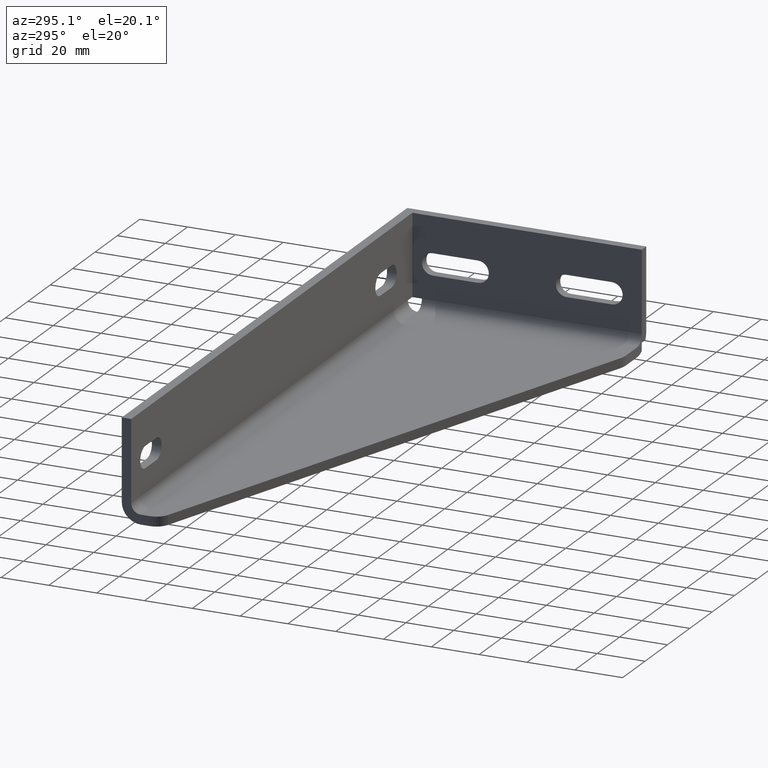
[diagram: clean part render]
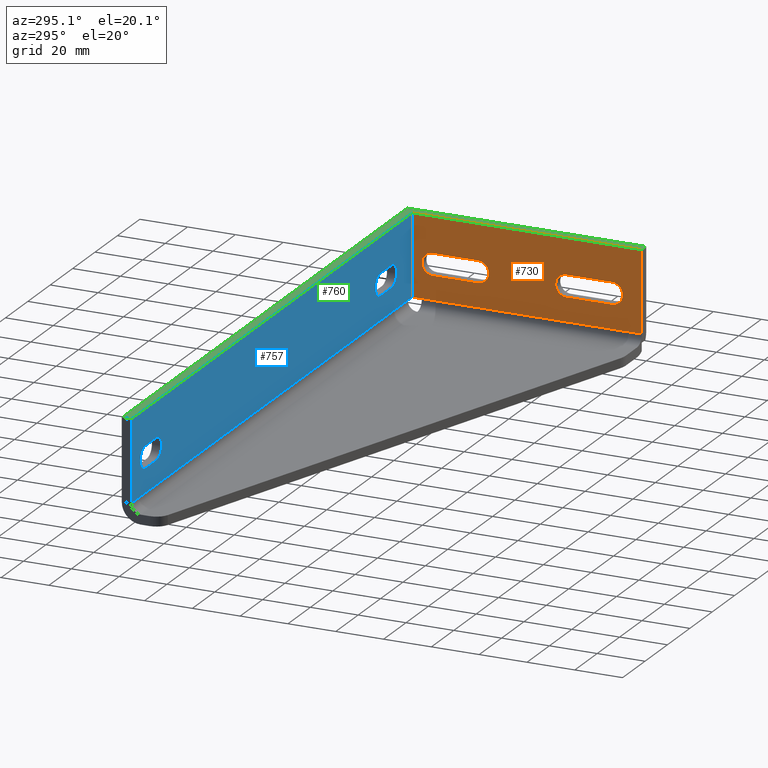
[diagram: same view with three faces highlighted in distinct colors, each labeled with its STEP entity id]
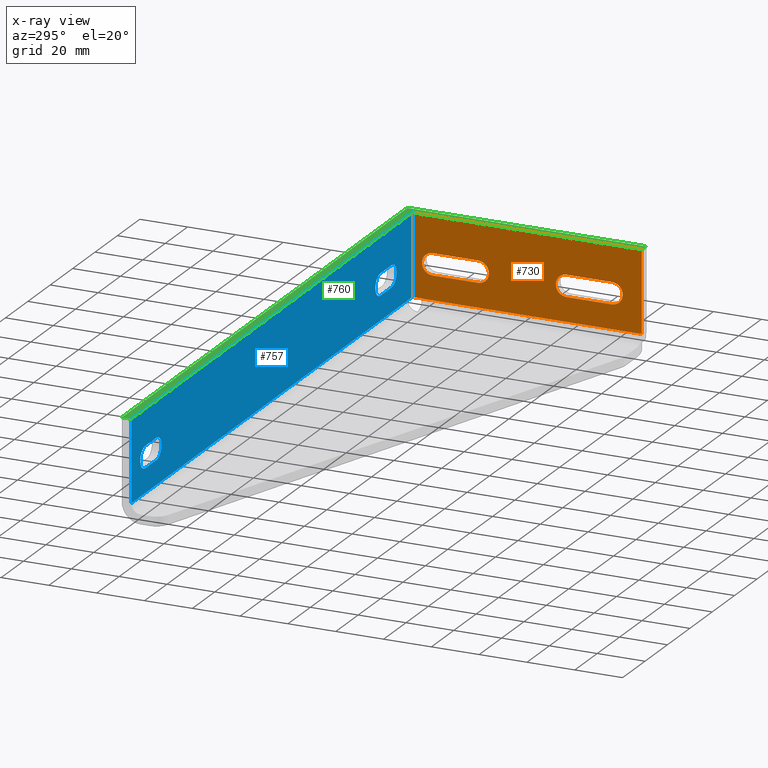
[diagram: x-ray of the same camera — body ghosted, the three highlighted faces saturated]
A machine part, auxiliary view with three faces highlighted in distinct colors.
The next image is the same camera in x-ray (body ghosted, the three faces saturated) — at least one of them is partly hidden behind the body in this view.
Their STEP definitions:

[orange] entity #730 — the highlighted planar face has unit normal (-1, 0, -0).
#16=FACE_BOUND('',#117,.T.);
#17=FACE_BOUND('',#118,.T.);
#25=CIRCLE('',#773,4.5);
#26=CIRCLE('',#775,4.5);
#28=CIRCLE('',#778,4.5);
#29=CIRCLE('',#779,4.5);
#75=FACE_OUTER_BOUND('',#116,.T.);
#116=EDGE_LOOP('',(#508,#509,#510,#511,#512));
#117=EDGE_LOOP('',(#513,#514,#515,#516));
#118=EDGE_LOOP('',(#517,#518,#519,#520));
#161=LINE('',#1066,#237);
#165=LINE('',#1075,#241);
#169=LINE('',#1084,#245);
#173=LINE('',#1093,#249);
#175=LINE('',#1104,#251);
#176=LINE('',#1106,#252);
#177=LINE('',#1108,#253);
#178=LINE('',#1110,#254);
#179=LINE('',#1111,#255);
#237=VECTOR('',#844,19.);
#241=VECTOR('',#850,19.);
#245=VECTOR('',#856,19.);
#249=VECTOR('',#862,19.);
#251=VECTOR('',#878,96.);
#252=VECTOR('',#879,34.);
#253=VECTOR('',#880,4.);
#254=VECTOR('',#881,92.);
#255=VECTOR('',#882,33.9999999999999);
#313=VERTEX_POINT('',#1063);
#314=VERTEX_POINT('',#1065);
#317=VERTEX_POINT('',#1072);
#318=VERTEX_POINT('',#1074);
#321=VERTEX_POINT('',#1081);
#322=VERTEX_POINT('',#1083);
#325=VERTEX_POINT('',#1090);
#326=VERTEX_POINT('',#1092);
#327=VERTEX_POINT('',#1102);
#328=VERTEX_POINT('',#1103);
#329=VERTEX_POINT('',#1105);
#330=VERTEX_POINT('',#1107);
#331=VERTEX_POINT('',#1109);
#379=EDGE_CURVE('',#314,#313,#161,.T.);
#383=EDGE_CURVE('',#318,#317,#165,.T.);
#387=EDGE_CURVE('',#322,#321,#169,.T.);
#391=EDGE_CURVE('',#326,#325,#173,.T.);
#394=EDGE_CURVE('',#317,#314,#25,.T.);
#395=EDGE_CURVE('',#321,#326,#26,.T.);
#397=EDGE_CURVE('',#327,#328,#175,.T.);
#398=EDGE_CURVE('',#329,#327,#176,.T.);
#399=EDGE_CURVE('',#329,#330,#177,.T.);
#400=EDGE_CURVE('',#330,#331,#178,.T.);
#401=EDGE_CURVE('',#328,#331,#179,.T.);
#402=EDGE_CURVE('',#313,#318,#28,.T.);
#403=EDGE_CURVE('',#325,#322,#29,.T.);
#508=ORIENTED_EDGE('',*,*,#397,.F.);
#509=ORIENTED_EDGE('',*,*,#398,.F.);
#510=ORIENTED_EDGE('',*,*,#399,.T.);
#511=ORIENTED_EDGE('',*,*,#400,.T.);
#512=ORIENTED_EDGE('',*,*,#401,.F.);
#513=ORIENTED_EDGE('',*,*,#394,.T.);
#514=ORIENTED_EDGE('',*,*,#379,.T.);
#515=ORIENTED_EDGE('',*,*,#402,.T.);
#516=ORIENTED_EDGE('',*,*,#383,.T.);
#517=ORIENTED_EDGE('',*,*,#391,.T.);
#518=ORIENTED_EDGE('',*,*,#403,.T.);
#519=ORIENTED_EDGE('',*,*,#387,.T.);
#520=ORIENTED_EDGE('',*,*,#395,.T.);
#702=PLANE('',#777);
#730=ADVANCED_FACE('',(#75,#16,#17),#702,.T.);
#773=AXIS2_PLACEMENT_3D('',#1097,#868,#869);
#775=AXIS2_PLACEMENT_3D('',#1099,#872,#873);
#777=AXIS2_PLACEMENT_3D('',#1101,#876,#877);
#778=AXIS2_PLACEMENT_3D('',#1112,#883,#884);
#779=AXIS2_PLACEMENT_3D('',#1113,#885,#886);
#844=DIRECTION('',(-1.70076183204162E-15,-1.,-7.72329060608804E-16));
#850=DIRECTION('',(1.70076183204162E-15,1.,7.72329060608804E-16));
#856=DIRECTION('',(-1.70076183204162E-15,-1.,-7.72329060608804E-16));
#862=DIRECTION('',(1.70076183204162E-15,1.,7.72329060608804E-16));
#868=DIRECTION('center_axis',(1.,-1.70076183204162E-15,1.5993479553445E-15));
#869=DIRECTION('ref_axis',(-1.5993479553445E-15,-7.72329060608801E-16,1.));
#872=DIRECTION('center_axis',(1.,-1.70076183204162E-15,1.5993479553445E-15));
#873=DIRECTION('ref_axis',(-1.5993479553445E-15,-7.72329060608801E-16,1.));
#876=DIRECTION('center_axis',(-1.,1.70076183204162E-15,-1.5993479553445E-15));
#877=DIRECTION('ref_axis',(-1.77635683940025E-15,0.,1.));
#878=DIRECTION('',(0.,-1.,-8.03222223033156E-16));
#879=DIRECTION('',(-2.089831575765E-15,-1.09209284292716E-16,1.));
#880=DIRECTION('',(-1.49554588919309E-59,-1.,-8.03222223033156E-16));
#881=DIRECTION('',(-1.70076183204162E-15,-1.,-2.30768365885029E-30));
#882=DIRECTION('',(7.94426253176225E-15,-3.88217367459135E-30,-1.));
#883=DIRECTION('center_axis',(1.,-1.70076183204162E-15,1.5993479553445E-15));
#884=DIRECTION('ref_axis',(-1.5993479553445E-15,-7.72329060608801E-16,1.));
#885=DIRECTION('center_axis',(1.,-1.70076183204162E-15,1.5993479553445E-15));
#886=DIRECTION('ref_axis',(-1.5993479553445E-15,-7.72329060608801E-16,1.));
#1063=CARTESIAN_POINT('',(-3.99999999999999,-31.5,4.5000000000005));
#1065=CARTESIAN_POINT('',(-3.99999999999999,-12.5,4.5000000000005));
#1066=CARTESIAN_POINT('',(-3.99999999999999,-42.75,4.5000000000004));
#1072=CARTESIAN_POINT('',(-3.99999999999999,-12.5,-4.4999999999995));
#1074=CARTESIAN_POINT('',(-3.99999999999999,-31.5,-4.4999999999996));
#1075=CARTESIAN_POINT('',(-3.99999999999999,-33.25,-4.4999999999996));
#1081=CARTESIAN_POINT('',(-3.99999999999999,-87.5,4.5000000000004));
#1083=CARTESIAN_POINT('',(-3.99999999999999,-68.5,4.5000000000004));
#1084=CARTESIAN_POINT('',(-3.99999999999999,-70.75,4.5000000000004));
#1090=CARTESIAN_POINT('',(-3.99999999999999,-68.5,-4.4999999999996));
#1092=CARTESIAN_POINT('',(-3.99999999999999,-87.5,-4.4999999999996));
#1093=CARTESIAN_POINT('',(-3.99999999999999,-61.25,-4.4999999999996));
#1097=CARTESIAN_POINT('Origin',(-3.99999999999999,-12.5,5.01820807130571E-13));
#1099=CARTESIAN_POINT('Origin',(-3.99999999999999,-87.5,4.04121180963557E-13));
#1101=CARTESIAN_POINT('Origin',(-3.99999999999999,-54.,-2.0238934211693));
#1102=CARTESIAN_POINT('',(-3.99999999999999,-3.99999999999999,19.5));
#1103=CARTESIAN_POINT('',(-3.99999999999999,-100.,19.4999999999999));
#1104=CARTESIAN_POINT('',(-3.99999999999999,-3.99999999999999,19.5));
#1105=CARTESIAN_POINT('',(-3.99999999999999,-3.99999999999999,-14.5));
#1106=CARTESIAN_POINT('',(-3.99999999999999,-3.99999999999999,8.7380532894155));
#1107=CARTESIAN_POINT('',(-3.99999999999999,-7.99999999999999,-14.5000000000001));
#1108=CARTESIAN_POINT('',(-3.99999999999999,-3.99999999999999,-14.5));
#1109=CARTESIAN_POINT('',(-3.99999999999999,-100.,-14.5));
#1110=CARTESIAN_POINT('',(-3.99999999999999,-54.,-14.5000000000001));
#1111=CARTESIAN_POINT('',(-3.99999999999999,-100.,-32.5955736846773));
#1112=CARTESIAN_POINT('Origin',(-3.99999999999999,-31.5,5.01820807130571E-13));
#1113=CARTESIAN_POINT('Origin',(-3.99999999999999,-68.5,4.04121180963557E-13));

[blue] entity #757 — the highlighted planar face has unit normal (0, -1, -0).
#18=FACE_BOUND('',#146,.T.);
#19=FACE_BOUND('',#147,.T.);
#41=CIRCLE('',#802,4.5);
#43=CIRCLE('',#806,4.5);
#45=CIRCLE('',#810,4.5);
#47=CIRCLE('',#814,4.5);
#102=FACE_OUTER_BOUND('',#145,.T.);
#145=EDGE_LOOP('',(#634,#635,#636,#637,#638));
#146=EDGE_LOOP('',(#639,#640,#641,#642));
#147=EDGE_LOOP('',(#643,#644,#645,#646));
#176=LINE('',#1106,#252);
#200=LINE('',#1194,#276);
#204=LINE('',#1204,#280);
#208=LINE('',#1218,#284);
#212=LINE('',#1228,#288);
#220=LINE('',#1248,#296);
#225=LINE('',#1263,#301);
#228=LINE('',#1268,#304);
#229=LINE('',#1269,#305);
#252=VECTOR('',#879,34.);
#276=VECTOR('',#955,10.);
#280=VECTOR('',#967,10.);
#284=VECTOR('',#979,10.);
#288=VECTOR('',#991,10.);
#296=VECTOR('',#1013,3.99999999999998);
#301=VECTOR('',#1030,34.);
#304=VECTOR('',#1035,251.);
#305=VECTOR('',#1036,247.);
#327=VERTEX_POINT('',#1102);
#329=VERTEX_POINT('',#1105);
#352=VERTEX_POINT('',#1185);
#353=VERTEX_POINT('',#1187);
#355=VERTEX_POINT('',#1193);
#357=VERTEX_POINT('',#1199);
#360=VERTEX_POINT('',#1209);
#361=VERTEX_POINT('',#1211);
#363=VERTEX_POINT('',#1217);
#365=VERTEX_POINT('',#1223);
#370=VERTEX_POINT('',#1247);
#373=VERTEX_POINT('',#1260);
#374=VERTEX_POINT('',#1262);
#398=EDGE_CURVE('',#329,#327,#176,.T.);
#434=EDGE_CURVE('',#353,#352,#41,.T.);
#437=EDGE_CURVE('',#355,#353,#200,.T.);
#440=EDGE_CURVE('',#357,#355,#43,.T.);
#443=EDGE_CURVE('',#352,#357,#204,.T.);
#446=EDGE_CURVE('',#361,#360,#45,.T.);
#449=EDGE_CURVE('',#363,#361,#208,.T.);
#452=EDGE_CURVE('',#365,#363,#47,.T.);
#455=EDGE_CURVE('',#360,#365,#212,.T.);
#465=EDGE_CURVE('',#370,#329,#220,.T.);
#473=EDGE_CURVE('',#374,#373,#225,.T.);
#476=EDGE_CURVE('',#327,#374,#228,.T.);
#477=EDGE_CURVE('',#373,#370,#229,.T.);
#634=ORIENTED_EDGE('',*,*,#398,.T.);
#635=ORIENTED_EDGE('',*,*,#476,.T.);
#636=ORIENTED_EDGE('',*,*,#473,.T.);
#637=ORIENTED_EDGE('',*,*,#477,.T.);
#638=ORIENTED_EDGE('',*,*,#465,.T.);
#639=ORIENTED_EDGE('',*,*,#440,.T.);
#640=ORIENTED_EDGE('',*,*,#437,.T.);
#641=ORIENTED_EDGE('',*,*,#434,.T.);
#642=ORIENTED_EDGE('',*,*,#443,.T.);
#643=ORIENTED_EDGE('',*,*,#452,.T.);
#644=ORIENTED_EDGE('',*,*,#449,.T.);
#645=ORIENTED_EDGE('',*,*,#446,.T.);
#646=ORIENTED_EDGE('',*,*,#455,.T.);
#717=PLANE('',#829);
#757=ADVANCED_FACE('',(#102,#18,#19),#717,.T.);
#802=AXIS2_PLACEMENT_3D('',#1188,#949,#950);
#806=AXIS2_PLACEMENT_3D('',#1200,#961,#962);
#810=AXIS2_PLACEMENT_3D('',#1212,#973,#974);
#814=AXIS2_PLACEMENT_3D('',#1224,#985,#986);
#829=AXIS2_PLACEMENT_3D('',#1267,#1033,#1034);
#879=DIRECTION('',(-2.089831575765E-15,-1.09209284292716E-16,1.));
#949=DIRECTION('center_axis',(-1.02333276947183E-18,1.,1.09209284292716E-16));
#950=DIRECTION('ref_axis',(1.,1.02333276947183E-18,2.23514878694602E-34));
#955=DIRECTION('',(-1.,-1.02333276947187E-18,4.44089209850063E-16));
#961=DIRECTION('center_axis',(-1.02333276947183E-18,1.,1.09209284292716E-16));
#962=DIRECTION('ref_axis',(1.,1.02333276947183E-18,2.23514878694602E-34));
#967=DIRECTION('',(1.,1.02333276947185E-18,-2.22044604925031E-16));
#973=DIRECTION('center_axis',(-1.02333276947183E-18,1.,1.09209284292716E-16));
#974=DIRECTION('ref_axis',(1.,1.02333276947183E-18,2.23514878694602E-34));
#979=DIRECTION('',(-1.,-1.02333276947183E-18,-1.11757439347301E-34));
#985=DIRECTION('center_axis',(-1.02333276947183E-18,1.,1.09209284292716E-16));
#986=DIRECTION('ref_axis',(1.,1.02333276947183E-18,2.23514878694602E-34));
#991=DIRECTION('',(1.,1.02333276947183E-18,1.11757439347301E-34));
#1013=DIRECTION('',(1.,1.02333276947183E-18,-6.26610600298134E-35));
#1030=DIRECTION('',(0.,0.,-1.));
#1033=DIRECTION('center_axis',(1.02333276947183E-18,-1.,-1.09209284292716E-16));
#1034=DIRECTION('ref_axis',(1.,0.,0.));
#1035=DIRECTION('',(-1.,0.,0.));
#1036=DIRECTION('',(1.,1.02333276947183E-18,-6.26610600298134E-35));
#1102=CARTESIAN_POINT('',(-3.99999999999999,-3.99999999999999,19.5));
#1105=CARTESIAN_POINT('',(-3.99999999999999,-3.99999999999999,-14.5));
#1106=CARTESIAN_POINT('',(-3.99999999999999,-3.99999999999999,8.7380532894155));
#1185=CARTESIAN_POINT('',(-32.5,-3.99999999999999,4.5));
#1187=CARTESIAN_POINT('',(-32.5,-3.99999999999999,-4.5));
#1188=CARTESIAN_POINT('Origin',(-32.5,-3.99999999999999,0.));
#1193=CARTESIAN_POINT('',(-22.5,-3.99999999999999,-4.5));
#1194=CARTESIAN_POINT('',(-80.,-3.99999999999999,-4.5));
#1199=CARTESIAN_POINT('',(-22.5,-3.99999999999999,4.5));
#1200=CARTESIAN_POINT('Origin',(-22.5,-3.99999999999999,0.));
#1204=CARTESIAN_POINT('',(-75.,-3.99999999999999,4.5));
#1209=CARTESIAN_POINT('',(-242.5,-3.99999999999999,4.5000000000005));
#1211=CARTESIAN_POINT('',(-242.5,-3.99999999999999,-4.4999999999995));
#1212=CARTESIAN_POINT('Origin',(-242.5,-3.99999999999999,5.01820807130571E-13));
#1217=CARTESIAN_POINT('',(-232.5,-3.99999999999999,-4.4999999999995));
#1218=CARTESIAN_POINT('',(-185.,-3.99999999999999,-4.4999999999995));
#1223=CARTESIAN_POINT('',(-232.5,-3.99999999999999,4.5000000000005));
#1224=CARTESIAN_POINT('Origin',(-232.5,-3.99999999999999,5.01820807130571E-13));
#1228=CARTESIAN_POINT('',(-180.,-3.99999999999999,4.5000000000005));
#1247=CARTESIAN_POINT('',(-7.99999999999997,-3.99999999999999,-14.5));
#1248=CARTESIAN_POINT('',(-127.5,-3.99999999999999,-14.5));
#1260=CARTESIAN_POINT('',(-255.,-3.99999999999999,-14.5));
#1262=CARTESIAN_POINT('',(-255.,-3.99999999999999,19.5));
#1263=CARTESIAN_POINT('',(-255.,-3.99999999999999,-32.5955736846772));
#1267=CARTESIAN_POINT('Origin',(-127.5,-3.99999999999999,-2.0238934211693));
#1268=CARTESIAN_POINT('',(0.,-3.99999999999999,19.5));
#1269=CARTESIAN_POINT('',(-127.5,-3.99999999999999,-14.5));

[green] entity #760 — the highlighted planar face has unit normal (0, 0, 1).
#105=FACE_OUTER_BOUND('',#152,.T.);
#152=EDGE_LOOP('',(#664,#665,#666,#667,#668,#669));
#175=LINE('',#1104,#251);
#217=LINE('',#1241,#293);
#226=LINE('',#1265,#302);
#228=LINE('',#1268,#304);
#231=LINE('',#1275,#307);
#232=LINE('',#1277,#308);
#251=VECTOR('',#878,96.);
#293=VECTOR('',#1006,3.99999999999999);
#302=VECTOR('',#1031,3.99999999999999);
#304=VECTOR('',#1035,251.);
#307=VECTOR('',#1044,100.);
#308=VECTOR('',#1047,255.);
#327=VERTEX_POINT('',#1102);
#328=VERTEX_POINT('',#1103);
#368=VERTEX_POINT('',#1239);
#374=VERTEX_POINT('',#1262);
#375=VERTEX_POINT('',#1264);
#376=VERTEX_POINT('',#1273);
#397=EDGE_CURVE('',#327,#328,#175,.T.);
#462=EDGE_CURVE('',#328,#368,#217,.T.);
#474=EDGE_CURVE('',#374,#375,#226,.T.);
#476=EDGE_CURVE('',#327,#374,#228,.T.);
#480=EDGE_CURVE('',#368,#376,#231,.T.);
#481=EDGE_CURVE('',#376,#375,#232,.T.);
#664=ORIENTED_EDGE('',*,*,#481,.T.);
#665=ORIENTED_EDGE('',*,*,#474,.F.);
#666=ORIENTED_EDGE('',*,*,#476,.F.);
#667=ORIENTED_EDGE('',*,*,#397,.T.);
#668=ORIENTED_EDGE('',*,*,#462,.T.);
#669=ORIENTED_EDGE('',*,*,#480,.T.);
#720=PLANE('',#833);
#760=ADVANCED_FACE('',(#105),#720,.T.);
#833=AXIS2_PLACEMENT_3D('',#1276,#1045,#1046);
#878=DIRECTION('',(0.,-1.,-8.03222223033156E-16));
#1006=DIRECTION('',(1.,-3.5527136788005E-16,1.71512449944288E-15));
#1031=DIRECTION('',(0.,1.,-6.12323399573677E-17));
#1035=DIRECTION('',(-1.,0.,0.));
#1044=DIRECTION('',(0.,1.,8.03222223033156E-16));
#1045=DIRECTION('center_axis',(0.,6.12323399573677E-17,1.));
#1046=DIRECTION('ref_axis',(0.,-1.,0.));
#1047=DIRECTION('',(-1.,0.,0.));
#1102=CARTESIAN_POINT('',(-3.99999999999999,-3.99999999999999,19.5));
#1103=CARTESIAN_POINT('',(-3.99999999999999,-100.,19.4999999999999));
#1104=CARTESIAN_POINT('',(-3.99999999999999,-3.99999999999999,19.5));
#1239=CARTESIAN_POINT('',(0.,-100.,19.4999999999999));
#1241=CARTESIAN_POINT('',(-3.99999999999999,-100.,19.4999999999999));
#1262=CARTESIAN_POINT('',(-255.,-3.99999999999999,19.5));
#1264=CARTESIAN_POINT('',(-255.,0.,19.5));
#1265=CARTESIAN_POINT('',(-255.,-3.99999999999999,19.5));
#1268=CARTESIAN_POINT('',(0.,-3.99999999999999,19.5));
#1273=CARTESIAN_POINT('',(0.,0.,19.5));
#1275=CARTESIAN_POINT('',(0.,-7.99999999999999,19.5));
#1276=CARTESIAN_POINT('Origin',(0.,-3.99999999999999,19.5));
#1277=CARTESIAN_POINT('',(0.,0.,19.5));